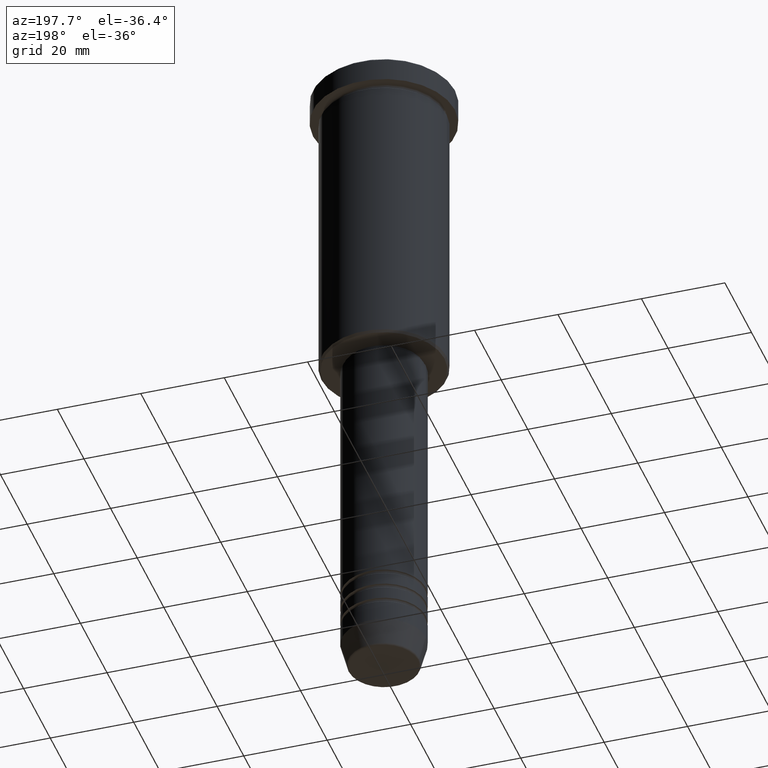
[diagram: clean part render]
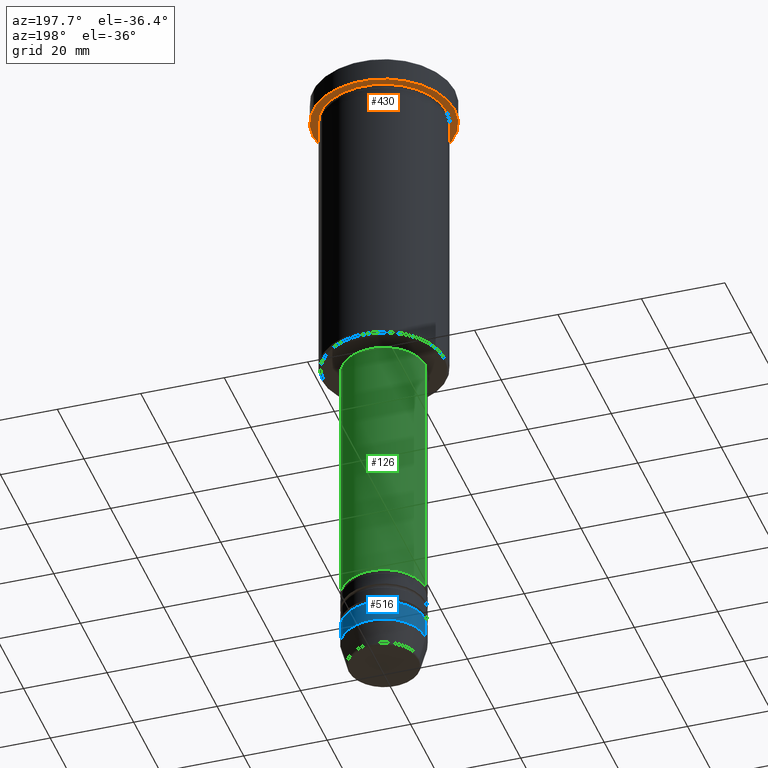
[diagram: same view with three faces highlighted in distinct colors, each labeled with its STEP entity id]
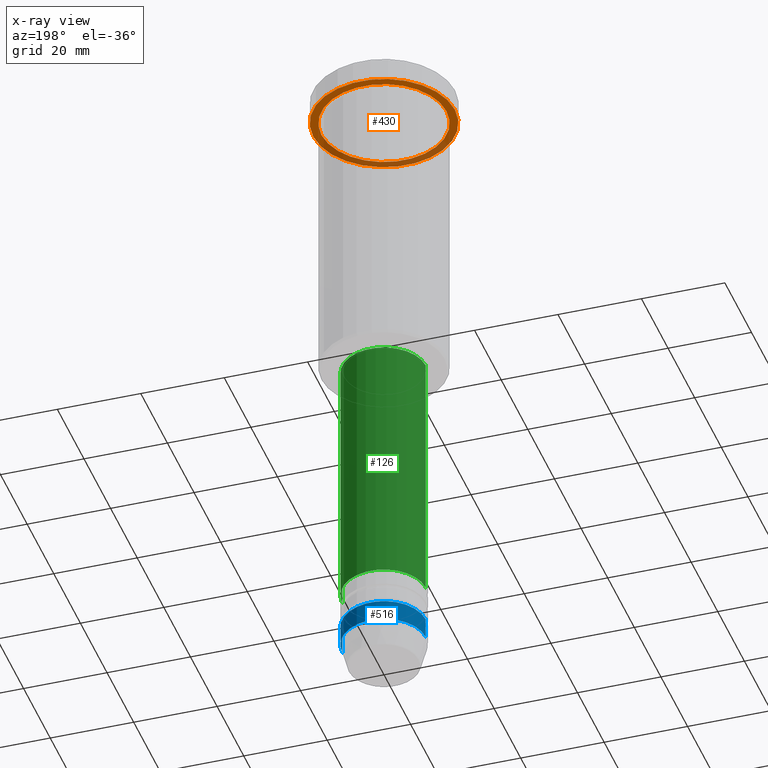
[diagram: x-ray of the same camera — body ghosted, the three highlighted faces saturated]
A machine part, auxiliary view with three faces highlighted in distinct colors.
The next image is the same camera in x-ray (body ghosted, the three faces saturated) — at least one of them is partly hidden behind the body in this view.
Their STEP definitions:

[orange] entity #430 — the highlighted planar face has unit normal (0, 0, -1).
#46 = VERTEX_POINT ( 'NONE', #231 ) ;
#61 = VERTEX_POINT ( 'NONE', #853 ) ;
#117 = ORIENTED_EDGE ( 'NONE', *, *, #397, .F. ) ;
#195 = CARTESIAN_POINT ( 'NONE',  ( 0.000000000000000000, 0.000000000000000000, -5.999999999999994671 ) ) ;
#231 = CARTESIAN_POINT ( 'NONE',  ( -17.00000000000000000, 2.081899558550500280E-15, -5.999999999999994671 ) ) ;
#274 = CARTESIAN_POINT ( 'NONE',  ( 17.00000000000000000, 0.000000000000000000, -5.999999999999994671 ) ) ;
#298 = AXIS2_PLACEMENT_3D ( 'NONE', #708, #822, #646 ) ;
#303 = DIRECTION ( 'NONE',  ( 0.000000000000000000, 0.000000000000000000, -1.000000000000000000 ) ) ;
#323 = FACE_BOUND ( 'NONE', #436, .T. ) ;
#339 = ORIENTED_EDGE ( 'NONE', *, *, #884, .F. ) ;
#370 = CIRCLE ( 'NONE', #851, 15.00000000000000000 ) ;
#387 = CIRCLE ( 'NONE', #714, 17.00000000000000000 ) ;
#397 = EDGE_CURVE ( 'NONE', #46, #1079, #387, .T. ) ;
#413 = CARTESIAN_POINT ( 'NONE',  ( 0.000000000000000000, 17.00000000000000000, -5.999999999999994671 ) ) ;
#430 = ADVANCED_FACE ( 'NONE', ( #323, #1054 ), #575, .T. ) ;
#436 = EDGE_LOOP ( 'NONE', ( #1099, #600 ) ) ;
#446 = CIRCLE ( 'NONE', #484, 15.00000000000000000 ) ;
#456 = DIRECTION ( 'NONE',  ( -1.000000000000000000, 0.000000000000000000, 0.000000000000000000 ) ) ;
#464 = AXIS2_PLACEMENT_3D ( 'NONE', #413, #303, #479 ) ;
#479 = DIRECTION ( 'NONE',  ( -1.000000000000000000, 0.000000000000000000, -0.000000000000000000 ) ) ;
#484 = AXIS2_PLACEMENT_3D ( 'NONE', #917, #647, #456 ) ;
#490 = VERTEX_POINT ( 'NONE', #712 ) ;
#559 = DIRECTION ( 'NONE',  ( -1.000000000000000000, 0.000000000000000000, 0.000000000000000000 ) ) ;
#575 = PLANE ( 'NONE',  #464 ) ;
#600 = ORIENTED_EDGE ( 'NONE', *, *, #644, .T. ) ;
#639 = CIRCLE ( 'NONE', #298, 17.00000000000000000 ) ;
#644 = EDGE_CURVE ( 'NONE', #61, #490, #370, .T. ) ;
#646 = DIRECTION ( 'NONE',  ( 1.000000000000000000, 0.000000000000000000, 0.000000000000000000 ) ) ;
#647 = DIRECTION ( 'NONE',  ( -0.000000000000000000, -0.000000000000000000, 1.000000000000000000 ) ) ;
#662 = DIRECTION ( 'NONE',  ( -0.000000000000000000, -0.000000000000000000, 1.000000000000000000 ) ) ;
#708 = CARTESIAN_POINT ( 'NONE',  ( 0.000000000000000000, 0.000000000000000000, -5.999999999999994671 ) ) ;
#712 = CARTESIAN_POINT ( 'NONE',  ( -15.00000000000000000, 0.000000000000000000, -5.999999999999994671 ) ) ;
#714 = AXIS2_PLACEMENT_3D ( 'NONE', #943, #1133, #857 ) ;
#822 = DIRECTION ( 'NONE',  ( -0.000000000000000000, -0.000000000000000000, 1.000000000000000000 ) ) ;
#851 = AXIS2_PLACEMENT_3D ( 'NONE', #195, #662, #559 ) ;
#853 = CARTESIAN_POINT ( 'NONE',  ( 15.00000000000000000, 1.836970198721029589E-15, -5.999999999999994671 ) ) ;
#857 = DIRECTION ( 'NONE',  ( 1.000000000000000000, 0.000000000000000000, 0.000000000000000000 ) ) ;
#884 = EDGE_CURVE ( 'NONE', #1079, #46, #639, .T. ) ;
#917 = CARTESIAN_POINT ( 'NONE',  ( 0.000000000000000000, 0.000000000000000000, -5.999999999999994671 ) ) ;
#943 = CARTESIAN_POINT ( 'NONE',  ( 0.000000000000000000, 0.000000000000000000, -5.999999999999994671 ) ) ;
#1039 = EDGE_LOOP ( 'NONE', ( #339, #117 ) ) ;
#1040 = EDGE_CURVE ( 'NONE', #490, #61, #446, .T. ) ;
#1054 = FACE_OUTER_BOUND ( 'NONE', #1039, .T. ) ;
#1079 = VERTEX_POINT ( 'NONE', #274 ) ;
#1099 = ORIENTED_EDGE ( 'NONE', *, *, #1040, .T. ) ;
#1133 = DIRECTION ( 'NONE',  ( -0.000000000000000000, -0.000000000000000000, 1.000000000000000000 ) ) ;

[blue] entity #516 — the highlighted cylindrical surface (partial cylindrical patch) has radius 10 mm, axis along (-0, -0, 1).
#72 = DIRECTION ( 'NONE',  ( -0.000000000000000000, -0.000000000000000000, 1.000000000000000000 ) ) ;
#92 = EDGE_CURVE ( 'NONE', #948, #653, #930, .T. ) ;
#93 = DIRECTION ( 'NONE',  ( -0.000000000000000000, -0.000000000000000000, 1.000000000000000000 ) ) ;
#149 = DIRECTION ( 'NONE',  ( -0.000000000000000000, -0.000000000000000000, 1.000000000000000000 ) ) ;
#153 = EDGE_CURVE ( 'NONE', #948, #992, #422, .T. ) ;
#158 = FACE_OUTER_BOUND ( 'NONE', #694, .T. ) ;
#181 = DIRECTION ( 'NONE',  ( 1.000000000000000000, 0.000000000000000000, 0.000000000000000000 ) ) ;
#238 = CARTESIAN_POINT ( 'NONE',  ( -10.00000000000000178, 1.224646799147353454E-15, 0.000000000000000000 ) ) ;
#255 = ORIENTED_EDGE ( 'NONE', *, *, #761, .T. ) ;
#259 = CARTESIAN_POINT ( 'NONE',  ( 10.00000000000000178, 0.000000000000000000, 0.000000000000000000 ) ) ;
#267 = ORIENTED_EDGE ( 'NONE', *, *, #92, .T. ) ;
#277 = EDGE_CURVE ( 'NONE', #992, #889, #296, .T. ) ;
#296 = CIRCLE ( 'NONE', #615, 10.00000000000000000 ) ;
#310 = AXIS2_PLACEMENT_3D ( 'NONE', #893, #72, #796 ) ;
#378 = CARTESIAN_POINT ( 'NONE',  ( -10.00000000000000178, 1.224646799147353454E-15, -154.0000000000000000 ) ) ;
#386 = VECTOR ( 'NONE', #898, 1000.000000000000000 ) ;
#422 = LINE ( 'NONE', #259, #386 ) ;
#516 = ADVANCED_FACE ( 'NONE', ( #158 ), #522, .T. ) ;
#522 = CYLINDRICAL_SURFACE ( 'NONE', #310, 10.00000000000000178 ) ;
#542 = CARTESIAN_POINT ( 'NONE',  ( -10.00000000000000000, 1.224646799147353256E-15, -149.0000000000000000 ) ) ;
#595 = AXIS2_PLACEMENT_3D ( 'NONE', #908, #793, #606 ) ;
#606 = DIRECTION ( 'NONE',  ( 1.000000000000000000, 0.000000000000000000, 0.000000000000000000 ) ) ;
#615 = AXIS2_PLACEMENT_3D ( 'NONE', #820, #93, #181 ) ;
#653 = VERTEX_POINT ( 'NONE', #378 ) ;
#694 = EDGE_LOOP ( 'NONE', ( #267, #255, #804, #707 ) ) ;
#707 = ORIENTED_EDGE ( 'NONE', *, *, #153, .F. ) ;
#761 = EDGE_CURVE ( 'NONE', #653, #889, #1156, .T. ) ;
#776 = CARTESIAN_POINT ( 'NONE',  ( 10.00000000000000178, 0.000000000000000000, -154.0000000000000000 ) ) ;
#780 = CARTESIAN_POINT ( 'NONE',  ( 10.00000000000000000, 0.000000000000000000, -149.0000000000000000 ) ) ;
#793 = DIRECTION ( 'NONE',  ( -0.000000000000000000, -0.000000000000000000, 1.000000000000000000 ) ) ;
#796 = DIRECTION ( 'NONE',  ( 1.000000000000000000, 0.000000000000000000, 0.000000000000000000 ) ) ;
#804 = ORIENTED_EDGE ( 'NONE', *, *, #277, .F. ) ;
#820 = CARTESIAN_POINT ( 'NONE',  ( 0.000000000000000000, 0.000000000000000000, -149.0000000000000000 ) ) ;
#873 = VECTOR ( 'NONE', #149, 1000.000000000000000 ) ;
#889 = VERTEX_POINT ( 'NONE', #542 ) ;
#893 = CARTESIAN_POINT ( 'NONE',  ( 0.000000000000000000, 0.000000000000000000, 0.000000000000000000 ) ) ;
#898 = DIRECTION ( 'NONE',  ( -0.000000000000000000, -0.000000000000000000, 1.000000000000000000 ) ) ;
#908 = CARTESIAN_POINT ( 'NONE',  ( 0.000000000000000000, 0.000000000000000000, -154.0000000000000000 ) ) ;
#930 = CIRCLE ( 'NONE', #595, 10.00000000000000178 ) ;
#948 = VERTEX_POINT ( 'NONE', #776 ) ;
#992 = VERTEX_POINT ( 'NONE', #780 ) ;
#1156 = LINE ( 'NONE', #238, #873 ) ;

[green] entity #126 — the highlighted cylindrical surface (partial cylindrical patch) has radius 10 mm, axis along (-0, -0, 1).
#28 = VECTOR ( 'NONE', #905, 1000.000000000000000 ) ;
#70 = FACE_OUTER_BOUND ( 'NONE', #176, .T. ) ;
#89 = CARTESIAN_POINT ( 'NONE',  ( 9.999999999999998224, 0.000000000000000000, -77.00000000000004263 ) ) ;
#102 = CARTESIAN_POINT ( 'NONE',  ( 10.00000000000000178, 0.000000000000000000, -139.9999999999999716 ) ) ;
#126 = ADVANCED_FACE ( 'NONE', ( #70 ), #343, .T. ) ;
#174 = DIRECTION ( 'NONE',  ( -0.000000000000000000, -0.000000000000000000, 1.000000000000000000 ) ) ;
#176 = EDGE_LOOP ( 'NONE', ( #757, #293, #1057, #599 ) ) ;
#197 = DIRECTION ( 'NONE',  ( -0.000000000000000000, -0.000000000000000000, 1.000000000000000000 ) ) ;
#216 = CIRCLE ( 'NONE', #524, 10.00000000000000178 ) ;
#239 = VECTOR ( 'NONE', #197, 1000.000000000000000 ) ;
#265 = DIRECTION ( 'NONE',  ( 1.000000000000000000, 0.000000000000000000, 0.000000000000000000 ) ) ;
#271 = CARTESIAN_POINT ( 'NONE',  ( -10.00000000000000000, 1.224646799147353256E-15, 0.000000000000000000 ) ) ;
#293 = ORIENTED_EDGE ( 'NONE', *, *, #888, .T. ) ;
#343 = CYLINDRICAL_SURFACE ( 'NONE', #910, 10.00000000000000000 ) ;
#360 = VERTEX_POINT ( 'NONE', #1015 ) ;
#401 = CARTESIAN_POINT ( 'NONE',  ( 0.000000000000000000, 0.000000000000000000, -77.00000000000004263 ) ) ;
#508 = VERTEX_POINT ( 'NONE', #821 ) ;
#524 = AXIS2_PLACEMENT_3D ( 'NONE', #855, #838, #1108 ) ;
#594 = EDGE_CURVE ( 'NONE', #649, #360, #216, .T. ) ;
#599 = ORIENTED_EDGE ( 'NONE', *, *, #1013, .F. ) ;
#649 = VERTEX_POINT ( 'NONE', #102 ) ;
#655 = DIRECTION ( 'NONE',  ( -0.000000000000000000, -0.000000000000000000, 1.000000000000000000 ) ) ;
#678 = EDGE_CURVE ( 'NONE', #1049, #508, #697, .T. ) ;
#697 = CIRCLE ( 'NONE', #733, 9.999999999999998224 ) ;
#710 = CARTESIAN_POINT ( 'NONE',  ( 0.000000000000000000, 0.000000000000000000, 0.000000000000000000 ) ) ;
#733 = AXIS2_PLACEMENT_3D ( 'NONE', #401, #655, #946 ) ;
#757 = ORIENTED_EDGE ( 'NONE', *, *, #594, .T. ) ;
#821 = CARTESIAN_POINT ( 'NONE',  ( -9.999999999999998224, 1.224646799147353256E-15, -77.00000000000004263 ) ) ;
#838 = DIRECTION ( 'NONE',  ( -0.000000000000000000, -0.000000000000000000, 1.000000000000000000 ) ) ;
#840 = CARTESIAN_POINT ( 'NONE',  ( 10.00000000000000000, 0.000000000000000000, 0.000000000000000000 ) ) ;
#855 = CARTESIAN_POINT ( 'NONE',  ( 0.000000000000000000, 0.000000000000000000, -139.9999999999999716 ) ) ;
#888 = EDGE_CURVE ( 'NONE', #360, #508, #997, .T. ) ;
#905 = DIRECTION ( 'NONE',  ( -0.000000000000000000, -0.000000000000000000, 1.000000000000000000 ) ) ;
#910 = AXIS2_PLACEMENT_3D ( 'NONE', #710, #174, #265 ) ;
#946 = DIRECTION ( 'NONE',  ( 1.000000000000000000, 0.000000000000000000, 0.000000000000000000 ) ) ;
#994 = LINE ( 'NONE', #840, #239 ) ;
#997 = LINE ( 'NONE', #271, #28 ) ;
#1013 = EDGE_CURVE ( 'NONE', #649, #1049, #994, .T. ) ;
#1015 = CARTESIAN_POINT ( 'NONE',  ( -10.00000000000000178, 1.224646799147353454E-15, -139.9999999999999716 ) ) ;
#1049 = VERTEX_POINT ( 'NONE', #89 ) ;
#1057 = ORIENTED_EDGE ( 'NONE', *, *, #678, .F. ) ;
#1108 = DIRECTION ( 'NONE',  ( 1.000000000000000000, 0.000000000000000000, 0.000000000000000000 ) ) ;